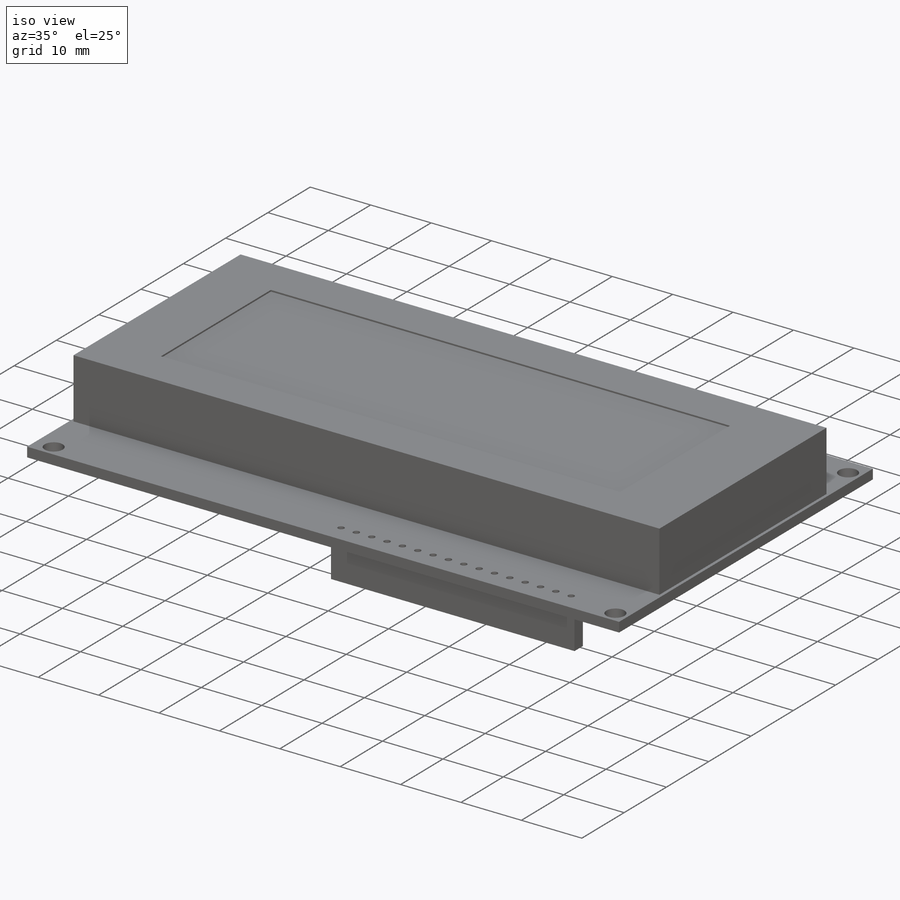
[diagram: iso view]
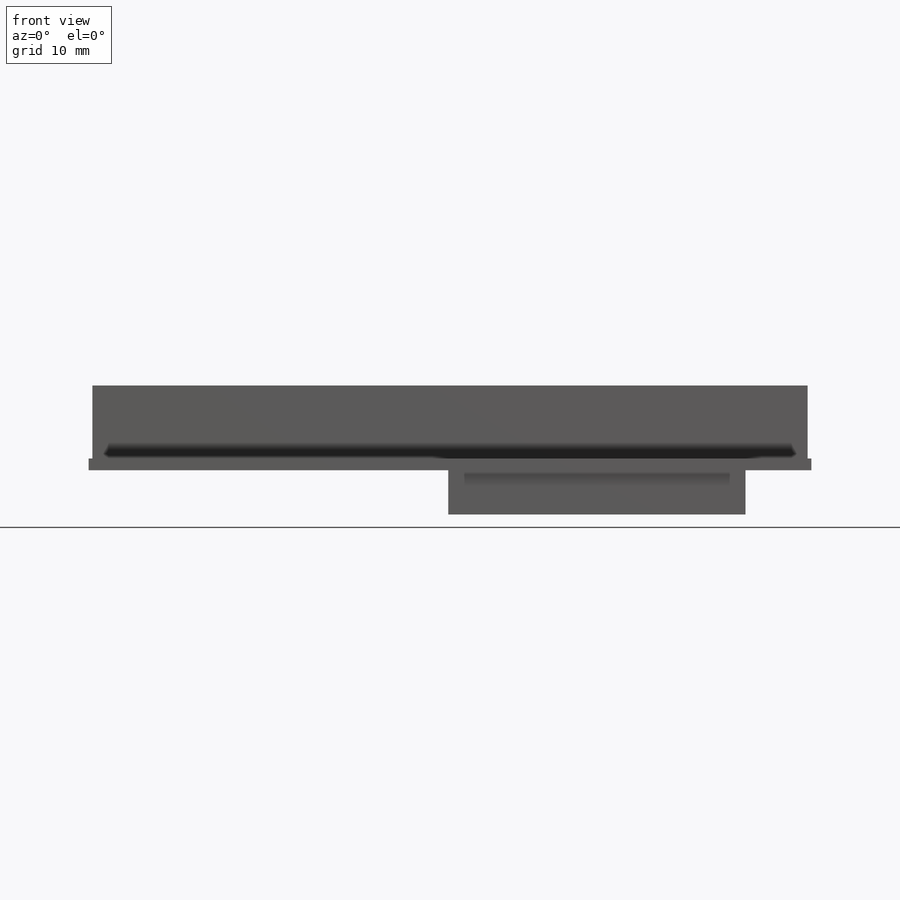
[diagram: front view]
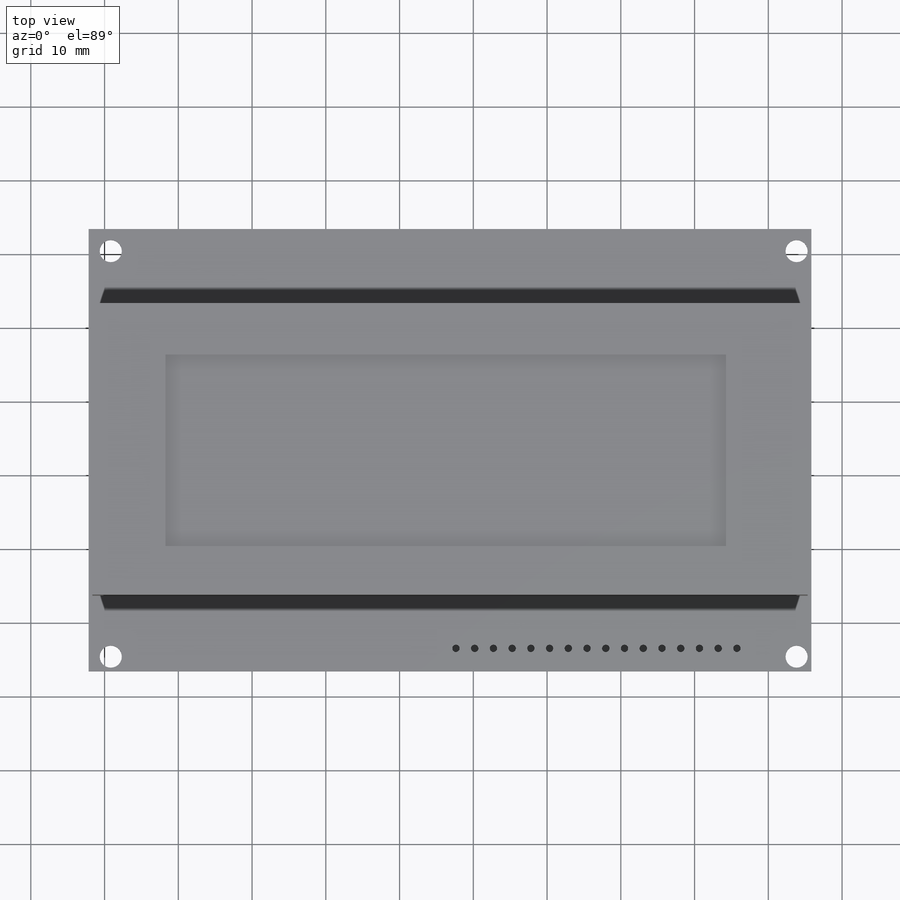
[diagram: top view]
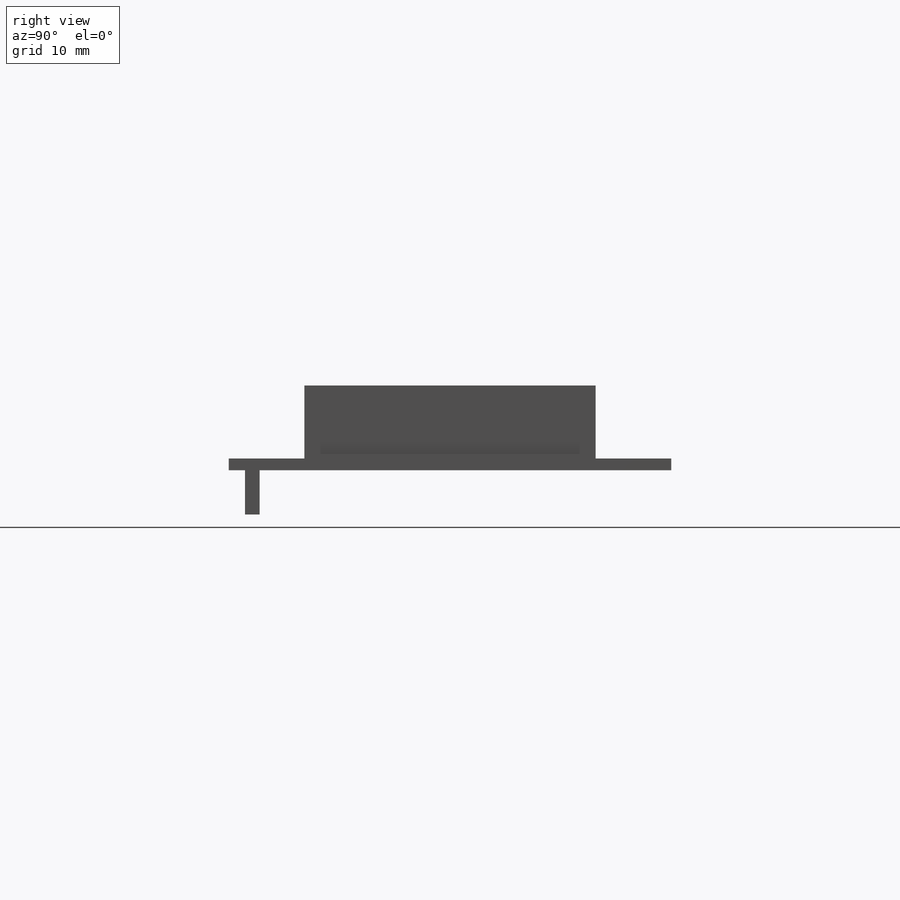
[diagram: right view]
SOLIDWORKS PART (.sldprt)
format: sldprt  version: not decoded by parser v0  size: 249,344 bytes
history: native  units: mm
features: sketch x6, extrude x3, cut_extrude x3, material x1 (+16 scaffold rows collapsed)
feature tree (29):
  scaffold x16  (default folders/planes/origin — collapsed)
  material  "Material <not specified>"
  sketch  "Sketch1"  dims[D1=60.0mm D2=98.0mm]
  extrude  "Boss-Extrude1"  Depth=1.6mm
  sketch  "Sketch2"  dims[D1=97.0mm D2=39.5mm D3=49.0mm D4=30.0mm D5=26.0mm D6=76.0mm]
  extrude  "Boss-Extrude2"  Depth=9.9mm
  sketch  "Sketch3"  dims[D1=26.0mm D2=76.0mm D3=39.5mm]
  sketch  "Sketch4"  dims[c1.D1=~2.170191mm c1.D5=3.0mm c1.D3=2.0mm c1.D4=2.0mm c2.D5=55.0mm c2.D6=93.0mm c2.D1=2.0 c2.D2=2.0]
  cut_extrude  "Cut-Extrude1"  Depth=1.6mm
  sketch  "Sketch5"  dims[c1.D1=~0.82945mm c1.D4=1.0mm c1.D2=3.1mm c1.D3=10.1mm c2.D1=16.0]
  cut_extrude  "Cut-Extrude2"  Depth=1.6mm
  sketch  "Sketch6"
  extrude  "Boss-Extrude3"  Depth=6mm
  cut_extrude  "Cut-Extrude3"  Depth=0.254mm
decode coverage: 11 of 12 modeling features carry decoded parameters
note: ~ marks probable driven/reference dimensions
note: suppression state not decoded; provenance and decode notes live in map.json
